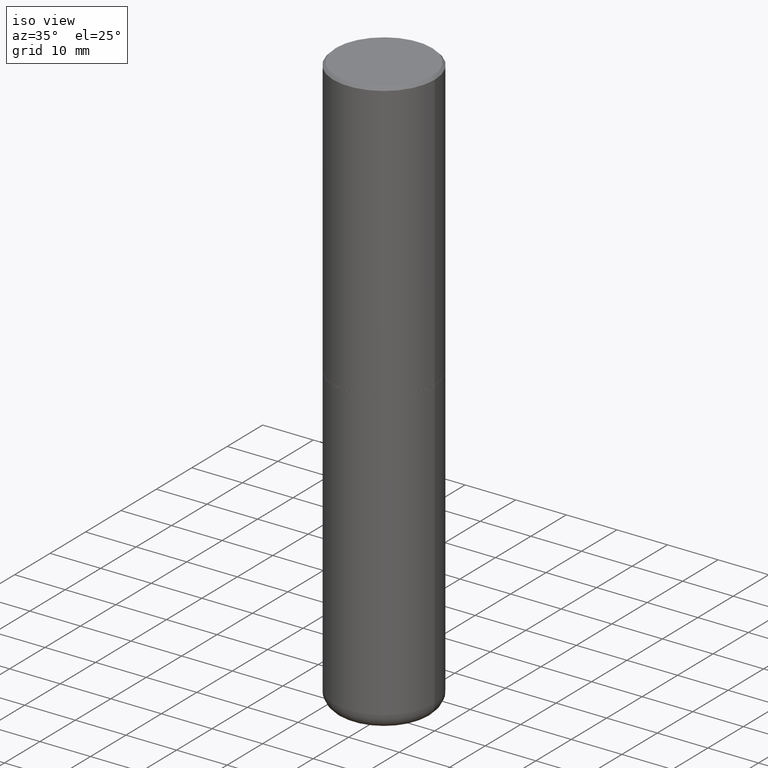
[diagram: clean part render]
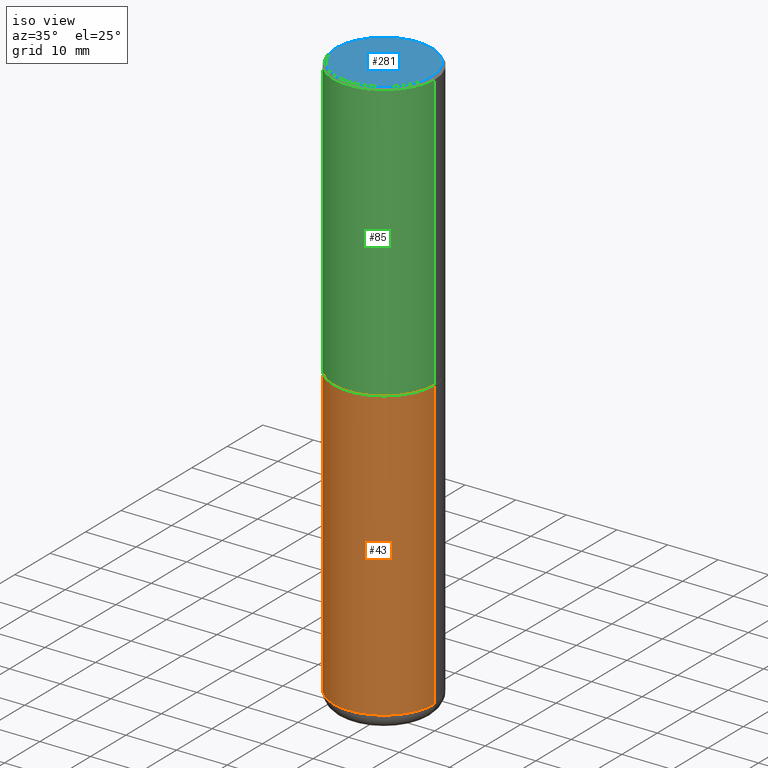
[diagram: same view with three faces highlighted in distinct colors, each labeled with its STEP entity id]
A machine part, iso view with three faces highlighted in distinct colors.
Their STEP definitions:

[orange] entity #43 — the highlighted cylindrical surface (partial cylindrical patch) has radius 10 mm, axis along (-0, 0, 1).
#6 = EDGE_LOOP ( 'NONE', ( #138, #241, #257, #205 ) ) ;
#27 = CARTESIAN_POINT ( 'NONE',  ( -0.3936999999999998834, -1.259828021294133576E-14, -4.409499999999999531 ) ) ;
#30 = DIRECTION ( 'NONE',  ( -2.445468806185136597E-29, 3.491481338843145583E-15, 1.000000000000000000 ) ) ;
#43 = ADVANCED_FACE ( 'NONE', ( #60 ), #252, .T. ) ;
#59 = AXIS2_PLACEMENT_3D ( 'NONE', #67, #30, #356 ) ;
#60 = FACE_OUTER_BOUND ( 'NONE', #6, .T. ) ;
#61 = CARTESIAN_POINT ( 'NONE',  ( 0.3937000000000000499, -2.749192406205083217E-15, 1.919750796630860172E-29 ) ) ;
#62 = VERTEX_POINT ( 'NONE', #194 ) ;
#67 = CARTESIAN_POINT ( 'NONE',  ( 5.295418152913293224E-29, -7.560453691130945845E-15, -2.165399999999999547 ) ) ;
#91 = VECTOR ( 'NONE', #342, 39.37007874015748143 ) ;
#134 = EDGE_CURVE ( 'NONE', #228, #62, #286, .T. ) ;
#135 = VECTOR ( 'NONE', #195, 39.37007874015748143 ) ;
#138 = ORIENTED_EDGE ( 'NONE', *, *, #410, .F. ) ;
#145 = CARTESIAN_POINT ( 'NONE',  ( -0.3937000000000000499, 2.797406750687514786E-15, -1.936584745033356735E-29 ) ) ;
#159 = CARTESIAN_POINT ( 'NONE',  ( 0.3937000000000000499, -1.030964609733602906E-14, -2.165399999999999547 ) ) ;
#194 = CARTESIAN_POINT ( 'NONE',  ( 0.3936999999999998834, -1.814487936983393140E-14, -4.409499999999999531 ) ) ;
#195 = DIRECTION ( 'NONE',  ( -2.445468806185136877E-29, 3.491481338843145188E-15, 1.000000000000000000 ) ) ;
#199 = LINE ( 'NONE', #61, #135 ) ;
#205 = ORIENTED_EDGE ( 'NONE', *, *, #318, .F. ) ;
#228 = VERTEX_POINT ( 'NONE', #27 ) ;
#237 = AXIS2_PLACEMENT_3D ( 'NONE', #275, #269, #240 ) ;
#240 = DIRECTION ( 'NONE',  ( 1.000000000000000000, -6.982962677686262766E-15, 0.000000000000000000 ) ) ;
#241 = ORIENTED_EDGE ( 'NONE', *, *, #134, .T. ) ;
#244 = CIRCLE ( 'NONE', #59, 0.3937000000000000499 ) ;
#252 = CYLINDRICAL_SURFACE ( 'NONE', #369, 0.3937000000000000499 ) ;
#257 = ORIENTED_EDGE ( 'NONE', *, *, #329, .T. ) ;
#269 = DIRECTION ( 'NONE',  ( -2.445468806185136597E-29, 3.491481338843145583E-15, 1.000000000000000000 ) ) ;
#275 = CARTESIAN_POINT ( 'NONE',  ( 1.078329470087335798E-28, -1.539568696362884818E-14, -4.409499999999999531 ) ) ;
#282 = DIRECTION ( 'NONE',  ( 1.000000000000000000, -6.982962677686265922E-15, 4.876176775795935793E-29 ) ) ;
#286 = CIRCLE ( 'NONE', #237, 0.3937000000000000499 ) ;
#304 = VERTEX_POINT ( 'NONE', #159 ) ;
#305 = LINE ( 'NONE', #145, #91 ) ;
#318 = EDGE_CURVE ( 'NONE', #397, #304, #244, .T. ) ;
#329 = EDGE_CURVE ( 'NONE', #62, #304, #199, .T. ) ;
#331 = CARTESIAN_POINT ( 'NONE',  ( -0.3937000000000000499, -8.680663576692383017E-15, -2.165399999999999547 ) ) ;
#342 = DIRECTION ( 'NONE',  ( -2.445468806185136877E-29, 3.491481338843145188E-15, 1.000000000000000000 ) ) ;
#350 = DIRECTION ( 'NONE',  ( -2.445468806185136597E-29, 3.491481338843145583E-15, 1.000000000000000000 ) ) ;
#356 = DIRECTION ( 'NONE',  ( 1.000000000000000000, -6.982962677686265133E-15, 0.000000000000000000 ) ) ;
#369 = AXIS2_PLACEMENT_3D ( 'NONE', #407, #350, #282 ) ;
#397 = VERTEX_POINT ( 'NONE', #331 ) ;
#407 = CARTESIAN_POINT ( 'NONE',  ( 0.000000000000000000, 0.000000000000000000, 0.000000000000000000 ) ) ;
#410 = EDGE_CURVE ( 'NONE', #228, #397, #305, .T. ) ;

[blue] entity #281 — the highlighted planar face has unit normal (0, -0, -1).
#54 = FACE_OUTER_BOUND ( 'NONE', #66, .T. ) ;
#58 = EDGE_CURVE ( 'NONE', #79, #234, #142, .T. ) ;
#66 = EDGE_LOOP ( 'NONE', ( #169, #96 ) ) ;
#79 = VERTEX_POINT ( 'NONE', #219 ) ;
#89 = CARTESIAN_POINT ( 'NONE',  ( 1.565777121502829671E-45, -2.235514755570671047E-31, -6.402768735150616610E-17 ) ) ;
#90 = CARTESIAN_POINT ( 'NONE',  ( 1.565777121502829671E-45, -2.235514755570671047E-31, -6.402768735150616610E-17 ) ) ;
#93 = DIRECTION ( 'NONE',  ( -2.445468806185136597E-29, 3.491481338843145583E-15, 1.000000000000000000 ) ) ;
#96 = ORIENTED_EDGE ( 'NONE', *, *, #120, .T. ) ;
#98 = DIRECTION ( 'NONE',  ( -1.000000000000000000, 6.982962677686265922E-15, -4.876176775795935793E-29 ) ) ;
#120 = EDGE_CURVE ( 'NONE', #234, #79, #333, .T. ) ;
#142 = CIRCLE ( 'NONE', #188, 0.3737000000000000322 ) ;
#156 = AXIS2_PLACEMENT_3D ( 'NONE', #89, #255, #301 ) ;
#169 = ORIENTED_EDGE ( 'NONE', *, *, #58, .T. ) ;
#188 = AXIS2_PLACEMENT_3D ( 'NONE', #90, #93, #223 ) ;
#196 = PLANE ( 'NONE',  #217 ) ;
#217 = AXIS2_PLACEMENT_3D ( 'NONE', #224, #314, #98 ) ;
#219 = CARTESIAN_POINT ( 'NONE',  ( -0.3737000000000000322, 2.644447966039789058E-15, -6.402768735152454409E-17 ) ) ;
#223 = DIRECTION ( 'NONE',  ( 1.000000000000000000, -6.982962677686266711E-15, 4.875705233642009010E-29 ) ) ;
#224 = CARTESIAN_POINT ( 'NONE',  ( 2.609533152651357803E-15, 0.3737000000000000322, -1.336780420001436835E-15 ) ) ;
#227 = CARTESIAN_POINT ( 'NONE',  ( 0.3737000000000000322, -2.667287895133368753E-15, -6.402768735148772648E-17 ) ) ;
#234 = VERTEX_POINT ( 'NONE', #227 ) ;
#255 = DIRECTION ( 'NONE',  ( -2.445468806185136597E-29, 3.491481338843145583E-15, 1.000000000000000000 ) ) ;
#281 = ADVANCED_FACE ( 'NONE', ( #54 ), #196, .F. ) ;
#301 = DIRECTION ( 'NONE',  ( 1.000000000000000000, -6.982962677686266711E-15, 4.875705233642009010E-29 ) ) ;
#314 = DIRECTION ( 'NONE',  ( 2.438088387897960049E-29, -3.491481338843145188E-15, -1.000000000000000000 ) ) ;
#333 = CIRCLE ( 'NONE', #156, 0.3737000000000000322 ) ;

[green] entity #85 — the highlighted cylindrical surface (partial cylindrical patch) has radius 10 mm, axis along (-0, 0, 1).
#5 = EDGE_CURVE ( 'NONE', #29, #361, #12, .T. ) ;
#12 = LINE ( 'NONE', #147, #284 ) ;
#23 = CARTESIAN_POINT ( 'NONE',  ( 0.3937000000000000499, -2.770807688499515734E-15, -0.02000000000000008715 ) ) ;
#29 = VERTEX_POINT ( 'NONE', #121 ) ;
#44 = AXIS2_PLACEMENT_3D ( 'NONE', #111, #267, #68 ) ;
#48 = DIRECTION ( 'NONE',  ( 1.000000000000000000, -6.982962677686269077E-15, 0.000000000000000000 ) ) ;
#57 = DIRECTION ( 'NONE',  ( -2.445468806185136597E-29, 3.491481338843145583E-15, 1.000000000000000000 ) ) ;
#68 = DIRECTION ( 'NONE',  ( 1.000000000000000000, -6.982962677686265922E-15, 0.000000000000000000 ) ) ;
#85 = ADVANCED_FACE ( 'NONE', ( #95 ), #413, .T. ) ;
#95 = FACE_OUTER_BOUND ( 'NONE', #178, .T. ) ;
#111 = CARTESIAN_POINT ( 'NONE',  ( 4.890937612370294178E-31, -6.982962677686321191E-17, -0.02000000000000008715 ) ) ;
#114 = ORIENTED_EDGE ( 'NONE', *, *, #381, .F. ) ;
#117 = AXIS2_PLACEMENT_3D ( 'NONE', #348, #57, #187 ) ;
#121 = CARTESIAN_POINT ( 'NONE',  ( 0.3937000000000002720, -1.030615461599718763E-14, -2.164399999999999658 ) ) ;
#127 = EDGE_CURVE ( 'NONE', #332, #29, #360, .T. ) ;
#130 = DIRECTION ( 'NONE',  ( -2.445468806185136597E-29, 3.491481338843145583E-15, 1.000000000000000000 ) ) ;
#147 = CARTESIAN_POINT ( 'NONE',  ( 0.3937000000000001609, -2.749192406205084400E-15, 1.919750796630860732E-29 ) ) ;
#162 = VECTOR ( 'NONE', #415, 39.37007874015748143 ) ;
#178 = EDGE_LOOP ( 'NONE', ( #365, #363, #266, #114 ) ) ;
#187 = DIRECTION ( 'NONE',  ( 1.000000000000000000, -6.982962677686266711E-15, 4.876176775795935793E-29 ) ) ;
#193 = EDGE_CURVE ( 'NONE', #332, #198, #277, .T. ) ;
#198 = VERTEX_POINT ( 'NONE', #287 ) ;
#258 = CARTESIAN_POINT ( 'NONE',  ( -0.3937000000000001609, 2.797406750687515575E-15, -1.936584745033357296E-29 ) ) ;
#262 = CARTESIAN_POINT ( 'NONE',  ( -0.3937000000000003830, -1.015989167596963746E-15, -2.164399999999999658 ) ) ;
#264 = CARTESIAN_POINT ( 'NONE',  ( 5.292972684107107621E-29, -7.556962209792102838E-15, -2.164399999999999658 ) ) ;
#266 = ORIENTED_EDGE ( 'NONE', *, *, #5, .T. ) ;
#267 = DIRECTION ( 'NONE',  ( -2.445468806185136597E-29, 3.491481338843145583E-15, 1.000000000000000000 ) ) ;
#268 = CIRCLE ( 'NONE', #44, 0.3937000000000000499 ) ;
#277 = LINE ( 'NONE', #258, #162 ) ;
#284 = VECTOR ( 'NONE', #310, 39.37007874015748143 ) ;
#287 = CARTESIAN_POINT ( 'NONE',  ( -0.3937000000000000499, 2.679362779428219918E-15, -0.02000000000000008715 ) ) ;
#310 = DIRECTION ( 'NONE',  ( -2.445468806185136877E-29, 3.491481338843145188E-15, 1.000000000000000000 ) ) ;
#313 = AXIS2_PLACEMENT_3D ( 'NONE', #264, #130, #48 ) ;
#332 = VERTEX_POINT ( 'NONE', #262 ) ;
#348 = CARTESIAN_POINT ( 'NONE',  ( 0.000000000000000000, 0.000000000000000000, 0.000000000000000000 ) ) ;
#360 = CIRCLE ( 'NONE', #313, 0.3937000000000002720 ) ;
#361 = VERTEX_POINT ( 'NONE', #23 ) ;
#363 = ORIENTED_EDGE ( 'NONE', *, *, #127, .T. ) ;
#365 = ORIENTED_EDGE ( 'NONE', *, *, #193, .F. ) ;
#381 = EDGE_CURVE ( 'NONE', #198, #361, #268, .T. ) ;
#413 = CYLINDRICAL_SURFACE ( 'NONE', #117, 0.3937000000000001609 ) ;
#415 = DIRECTION ( 'NONE',  ( -2.445468806185136877E-29, 3.491481338843145188E-15, 1.000000000000000000 ) ) ;